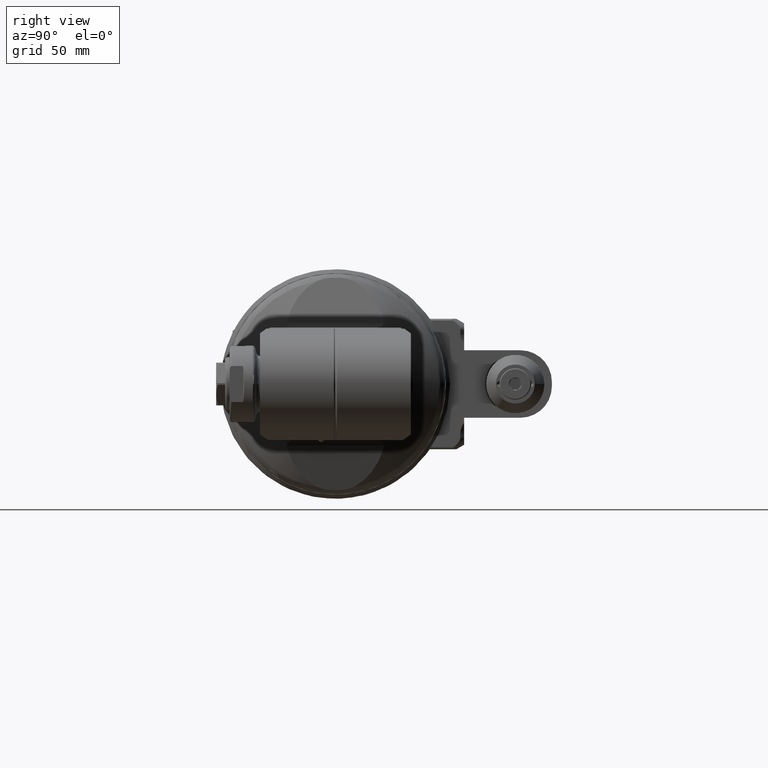
[diagram: clean part render]
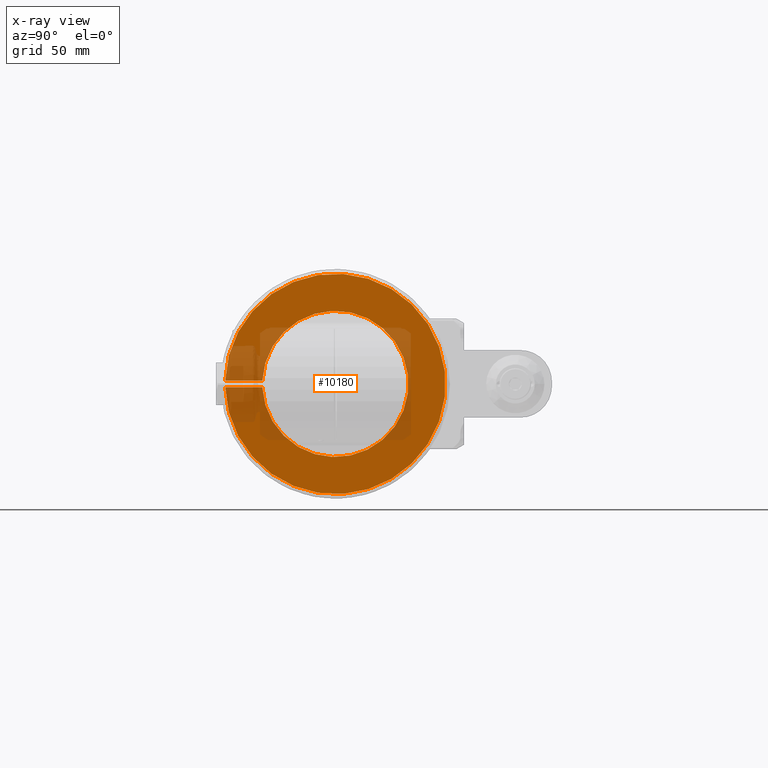
[diagram: x-ray — body ghosted, one internal face saturated and labeled with its STEP entity id]
A machine part, right view, then the same camera in x-ray: the body is ghosted and one INTERNAL B-rep face — a face not visible from any outside direction — is saturated and labeled: STEP entity #10180.
In plain terms, the highlighted planar face has unit normal (1, 0, 0).
Its self-contained STEP definition (entity closure, byte-faithful):
#939=LINE('',#16744,#1612);
#944=LINE('',#16778,#1617);
#1612=VECTOR('',#13227,16.51166927349);
#1617=VECTOR('',#13238,16.51166927349);
#2455=FACE_OUTER_BOUND('',#3150,.T.);
#3150=EDGE_LOOP('',(#7955,#7956,#7957,#7958));
#3808=CIRCLE('',#11162,49.);
#3811=CIRCLE('',#11167,32.5);
#4535=VERTEX_POINT('',#16733);
#4536=VERTEX_POINT('',#16737);
#4537=VERTEX_POINT('',#16743);
#4545=VERTEX_POINT('',#16777);
#5765=EDGE_CURVE('',#4536,#4535,#3808,.T.);
#5767=EDGE_CURVE('',#4537,#4536,#939,.T.);
#5776=EDGE_CURVE('',#4535,#4545,#944,.T.);
#5777=EDGE_CURVE('',#4545,#4537,#3811,.T.);
#7955=ORIENTED_EDGE('',*,*,#5765,.T.);
#7956=ORIENTED_EDGE('',*,*,#5776,.T.);
#7957=ORIENTED_EDGE('',*,*,#5777,.T.);
#7958=ORIENTED_EDGE('',*,*,#5767,.T.);
#9720=PLANE('',#11166);
#10180=ADVANCED_FACE('',(#2455),#9720,.T.);
#11162=AXIS2_PLACEMENT_3D('',#16738,#13223,#13224);
#11166=AXIS2_PLACEMENT_3D('',#16776,#13236,#13237);
#11167=AXIS2_PLACEMENT_3D('',#16779,#13239,#13240);
#13223=DIRECTION('center_axis',(1.,0.,0.));
#13224=DIRECTION('ref_axis',(0.,1.,0.));
#13227=DIRECTION('',(0.,-1.,0.));
#13236=DIRECTION('center_axis',(1.,0.,0.));
#13237=DIRECTION('ref_axis',(0.,-1.,0.));
#13238=DIRECTION('',(0.,1.,0.));
#13239=DIRECTION('center_axis',(-1.,0.,0.));
#13240=DIRECTION('ref_axis',(0.,-0.998934343430642,0.0461538461538519));
#16733=CARTESIAN_POINT('',(-12.,-48.97703543499,1.5));
#16737=CARTESIAN_POINT('',(-12.,-48.97703543499,-1.5));
#16738=CARTESIAN_POINT('Origin',(-12.,0.,0.));
#16743=CARTESIAN_POINT('',(-12.,-32.4653661615,-1.5));
#16744=CARTESIAN_POINT('',(-12.,-32.4653661615,-1.5));
#16776=CARTESIAN_POINT('Origin',(-12.,-49.13074005203,0.));
#16777=CARTESIAN_POINT('',(-12.,-32.4653661615,1.5));
#16778=CARTESIAN_POINT('',(-12.,-48.97703543499,1.5));
#16779=CARTESIAN_POINT('Origin',(-12.,0.,0.));